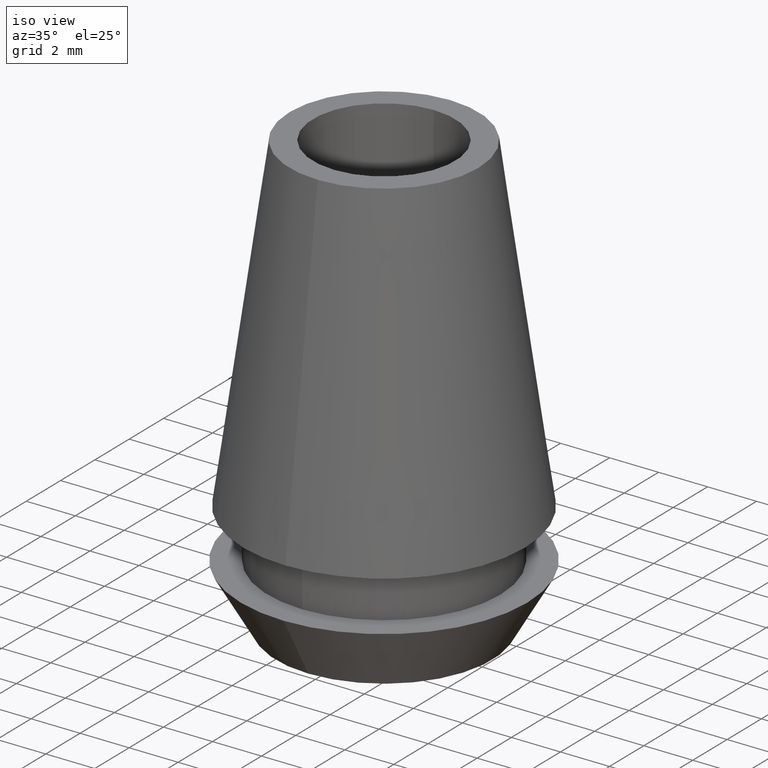
[diagram: clean part render]
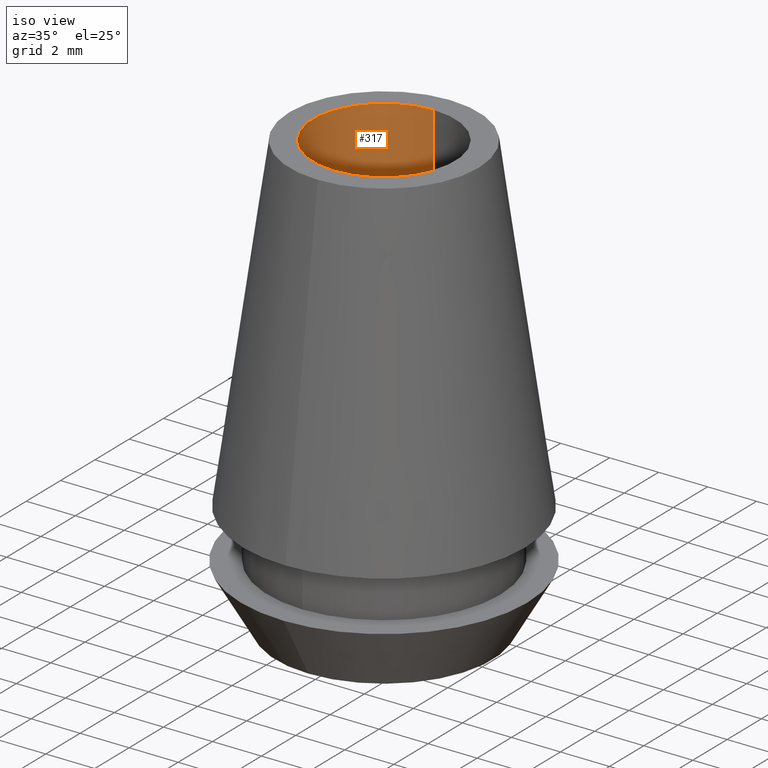
[diagram: same view with one face highlighted and labeled with its STEP entity id]
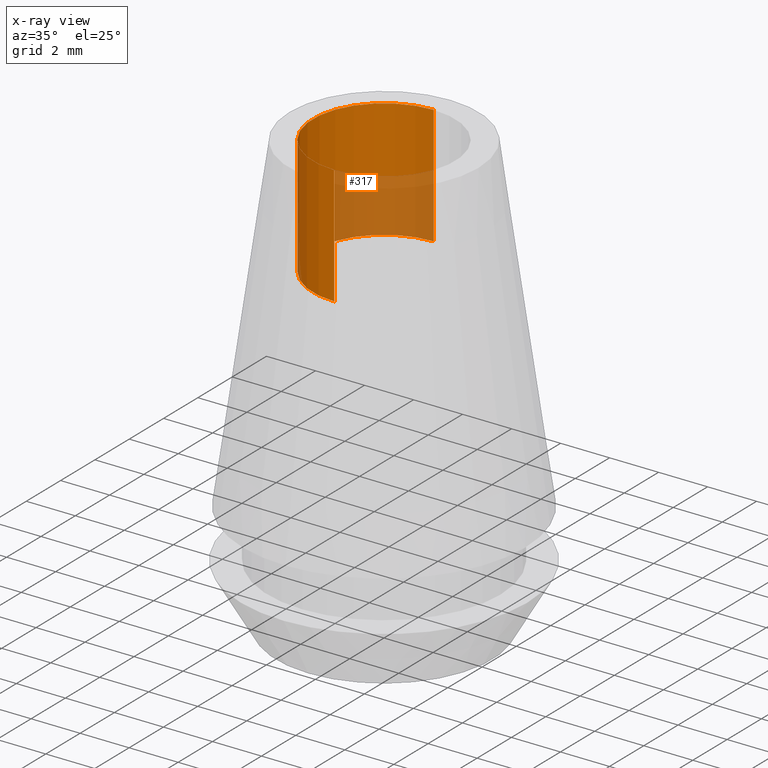
[diagram: x-ray of the same camera — body ghosted, the highlighted face saturated]
A machine part, iso view. The second image highlights one B-rep face of the part: STEP entity #317.
The next image is the same camera in x-ray: the body ghosted, the highlighted face saturated — about 33% of this face is hidden behind the body in this view.
In plain terms, the highlighted cylindrical surface (partial cylindrical patch) has radius 2.9 mm, axis along (0, 0, -1).
Its self-contained STEP definition (entity closure, byte-faithful):
#17=DIRECTION('',(0.E0,0.E0,1.E0));
#18=VECTOR('',#17,4.85E0);
#19=CARTESIAN_POINT('',(0.E0,2.9E0,-4.85E0));
#20=LINE('',#19,#18);
#25=DIRECTION('',(0.E0,0.E0,1.E0));
#26=VECTOR('',#25,4.85E0);
#27=CARTESIAN_POINT('',(0.E0,-2.9E0,-4.85E0));
#28=LINE('',#27,#26);
#32=CARTESIAN_POINT('',(0.E0,1.378952295840E-14,-4.85E0));
#33=DIRECTION('',(0.E0,0.E0,-1.E0));
#34=DIRECTION('',(0.E0,-1.E0,0.E0));
#35=AXIS2_PLACEMENT_3D('',#32,#33,#34);
#240=CARTESIAN_POINT('',(0.E0,1.378952295840E-14,0.E0));
#241=DIRECTION('',(0.E0,0.E0,1.E0));
#242=DIRECTION('',(0.E0,1.E0,0.E0));
#243=AXIS2_PLACEMENT_3D('',#240,#241,#242);
#248=CARTESIAN_POINT('',(0.E0,2.9E0,-4.85E0));
#249=CARTESIAN_POINT('',(0.E0,2.9E0,0.E0));
#250=VERTEX_POINT('',#248);
#251=VERTEX_POINT('',#249);
#252=CARTESIAN_POINT('',(0.E0,-2.9E0,0.E0));
#253=VERTEX_POINT('',#252);
#254=CARTESIAN_POINT('',(0.E0,-2.9E0,-4.85E0));
#255=VERTEX_POINT('',#254);
#304=CARTESIAN_POINT('',(0.E0,1.378952295840E-14,9.E-1));
#305=DIRECTION('',(0.E0,0.E0,-1.E0));
#306=DIRECTION('',(0.E0,-1.E0,0.E0));
#307=AXIS2_PLACEMENT_3D('',#304,#305,#306);
#308=CYLINDRICAL_SURFACE('',#307,2.9E0);
#309=ORIENTED_EDGE('',*,*,#293,.F.);
#311=ORIENTED_EDGE('',*,*,#310,.F.);
#312=ORIENTED_EDGE('',*,*,#297,.T.);
#314=ORIENTED_EDGE('',*,*,#313,.F.);
#315=EDGE_LOOP('',(#309,#311,#312,#314));
#316=FACE_OUTER_BOUND('',#315,.F.);
#36=CIRCLE('',#35,2.9E0);
#244=CIRCLE('',#243,2.9E0);
#293=EDGE_CURVE('',#250,#251,#20,.T.);
#297=EDGE_CURVE('',#255,#253,#28,.T.);
#310=EDGE_CURVE('',#255,#250,#36,.T.);
#313=EDGE_CURVE('',#251,#253,#244,.T.);
#317=ADVANCED_FACE('',(#316),#308,.F.);